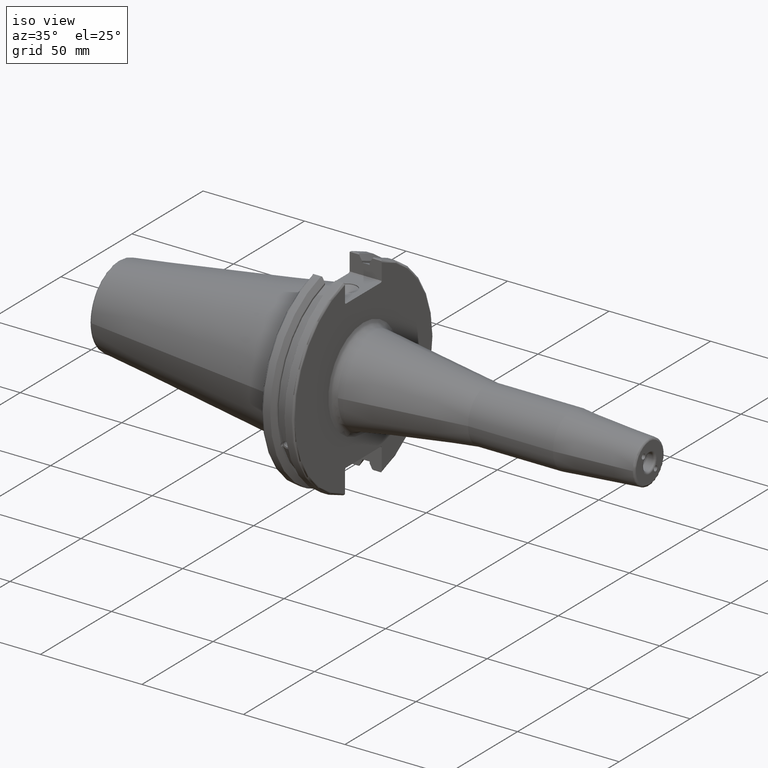
[diagram: clean part render]
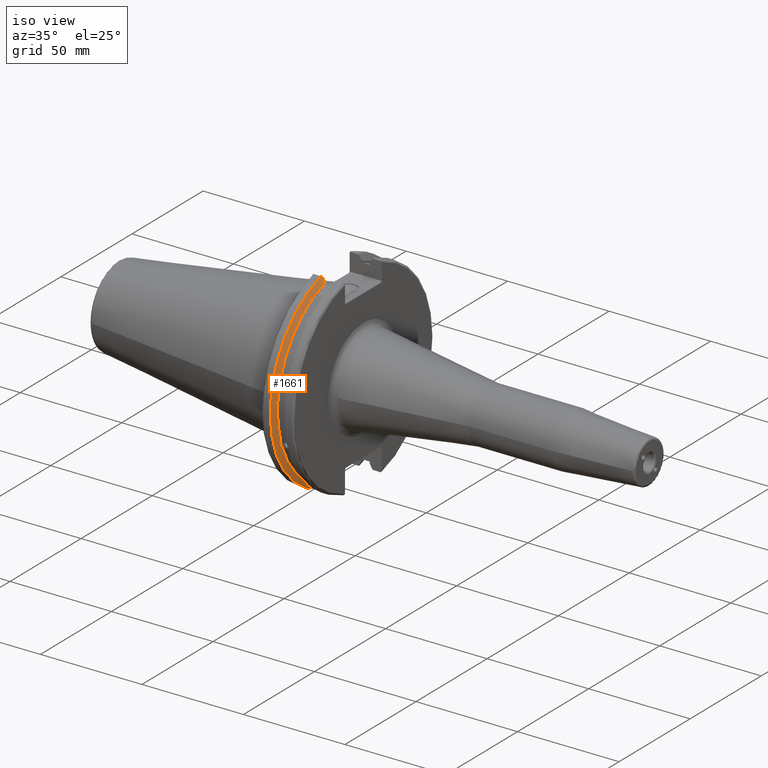
[diagram: same view with one face highlighted and labeled with its STEP entity id]
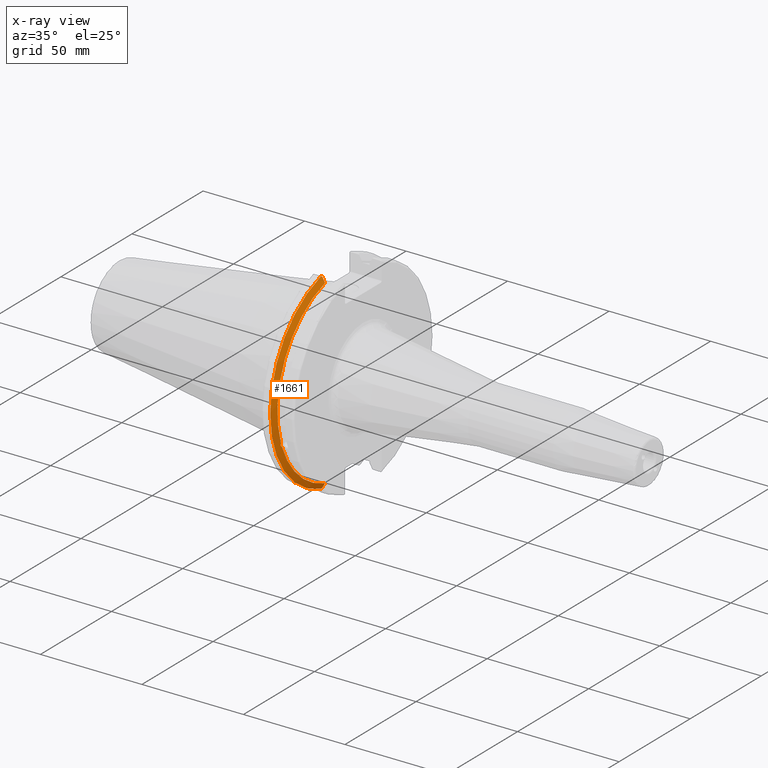
[diagram: x-ray of the same camera — body ghosted, the highlighted face saturated]
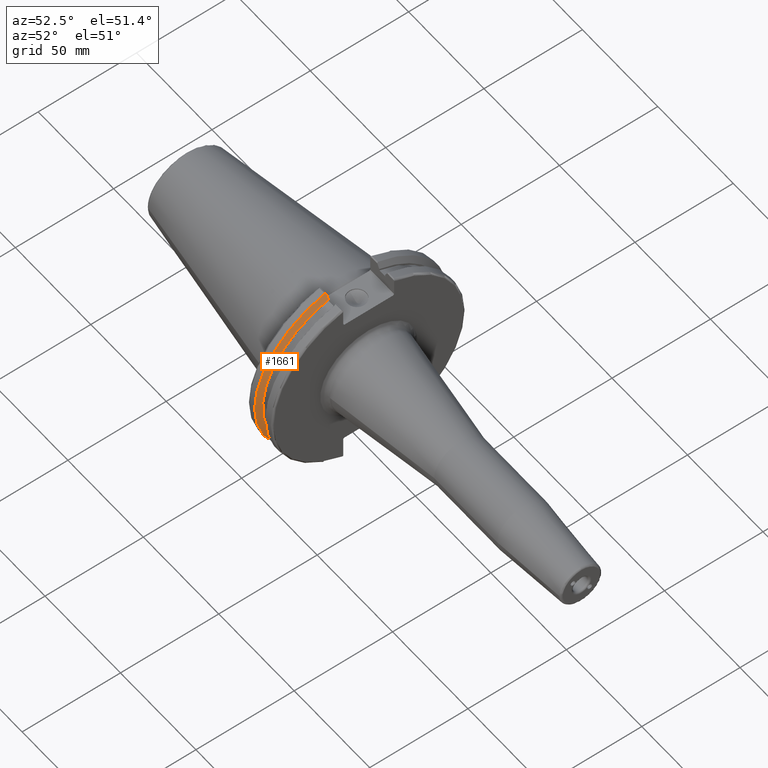
[diagram: same view with one face highlighted and labeled with its STEP entity id]
A machine part, iso view. The second image highlights one B-rep face of the part: STEP entity #1661.
The next image is the same camera in x-ray: the body ghosted, the highlighted face saturated — about 0% of this face is hidden behind the body in this view.
A second angle (auxiliary view) of the same face is appended — the face is thin or edge-on in the first view.
In plain terms, the highlighted conical surface has half-angle 60 deg.
Its self-contained STEP definition (entity closure, byte-faithful):
#25=(
BOUNDED_CURVE()
B_SPLINE_CURVE(2,(#3150,#3151,#3152),.UNSPECIFIED.,.F.,.F.)
B_SPLINE_CURVE_WITH_KNOTS((3,3),(0.,0.275823910674601),.UNSPECIFIED.)
CURVE()
GEOMETRIC_REPRESENTATION_ITEM()
RATIONAL_B_SPLINE_CURVE((1.,1.00038235573593,1.00012873636487))
REPRESENTATION_ITEM('')
);
#26=(
BOUNDED_CURVE()
B_SPLINE_CURVE(2,(#3162,#3163,#3164),.UNSPECIFIED.,.F.,.F.)
B_SPLINE_CURVE_WITH_KNOTS((3,3),(0.0558332664507492,0.331657177124507),
 .UNSPECIFIED.)
CURVE()
GEOMETRIC_REPRESENTATION_ITEM()
RATIONAL_B_SPLINE_CURVE((1.00012873636807,1.00038235574544,1.))
REPRESENTATION_ITEM('')
);
#27=(
BOUNDED_CURVE()
B_SPLINE_CURVE(2,(#3197,#3198,#3199),.UNSPECIFIED.,.F.,.F.)
B_SPLINE_CURVE_WITH_KNOTS((3,3),(0.,0.0648240472897372),.UNSPECIFIED.)
CURVE()
GEOMETRIC_REPRESENTATION_ITEM()
RATIONAL_B_SPLINE_CURVE((1.,1.00011477674836,1.00019140645948))
REPRESENTATION_ITEM('')
);
#28=(
BOUNDED_CURVE()
B_SPLINE_CURVE(2,(#3205,#3206,#3207),.UNSPECIFIED.,.F.,.F.)
B_SPLINE_CURVE_WITH_KNOTS((3,3),(0.325260944932348,0.390084992222201),
 .UNSPECIFIED.)
CURVE()
GEOMETRIC_REPRESENTATION_ITEM()
RATIONAL_B_SPLINE_CURVE((1.00019140645916,1.00011477674817,1.))
REPRESENTATION_ITEM('')
);
#107=B_SPLINE_CURVE_WITH_KNOTS('',3,(#2641,#2642,#2643,#2644,#2645,#2646,
#2647,#2648,#2649,#2650,#2651,#2652,#2653,#2654),.UNSPECIFIED.,.F.,.F.,
(4,2,2,2,2,2,4),(0.426712868358719,0.441644498666906,0.48031331322313,0.518982127779354,
0.557650942335578,0.596319756891801,0.611251387199988),.UNSPECIFIED.);
#262=FACE_OUTER_BOUND('',#375,.T.);
#375=EDGE_LOOP('',(#1535,#1536,#1537,#1538,#1539,#1540,#1541,#1542));
#615=CIRCLE('',#1762,46.4219772964944);
#641=CIRCLE('',#1817,49.2125);
#657=CIRCLE('',#1864,46.4219772964944);
#713=VERTEX_POINT('',#2638);
#714=VERTEX_POINT('',#2640);
#731=VERTEX_POINT('',#2730);
#795=VERTEX_POINT('',#3147);
#796=VERTEX_POINT('',#3149);
#799=VERTEX_POINT('',#3161);
#803=VERTEX_POINT('',#3195);
#804=VERTEX_POINT('',#3201);
#894=EDGE_CURVE('',#714,#713,#107,.T.);
#917=EDGE_CURVE('',#714,#731,#615,.T.);
#1005=EDGE_CURVE('',#796,#795,#25,.T.);
#1011=EDGE_CURVE('',#799,#731,#26,.T.);
#1019=EDGE_CURVE('',#803,#795,#27,.T.);
#1021=EDGE_CURVE('',#803,#804,#641,.T.);
#1022=EDGE_CURVE('',#799,#804,#28,.T.);
#1064=EDGE_CURVE('',#796,#713,#657,.T.);
#1535=ORIENTED_EDGE('',*,*,#894,.T.);
#1536=ORIENTED_EDGE('',*,*,#1064,.F.);
#1537=ORIENTED_EDGE('',*,*,#1005,.T.);
#1538=ORIENTED_EDGE('',*,*,#1019,.F.);
#1539=ORIENTED_EDGE('',*,*,#1021,.T.);
#1540=ORIENTED_EDGE('',*,*,#1022,.F.);
#1541=ORIENTED_EDGE('',*,*,#1011,.T.);
#1542=ORIENTED_EDGE('',*,*,#917,.F.);
#1571=CONICAL_SURFACE('',#1863,47.8172386482472,1.0471975511966);
#1661=ADVANCED_FACE('',(#262),#1571,.T.);
#1762=AXIS2_PLACEMENT_3D('',#2731,#2054,#2055);
#1817=AXIS2_PLACEMENT_3D('',#3203,#2208,#2209);
#1863=AXIS2_PLACEMENT_3D('',#3319,#2321,#2322);
#1864=AXIS2_PLACEMENT_3D('',#3320,#2323,#2324);
#2054=DIRECTION('center_axis',(1.,0.,0.));
#2055=DIRECTION('ref_axis',(0.,0.,-1.));
#2208=DIRECTION('center_axis',(1.,0.,0.));
#2209=DIRECTION('ref_axis',(0.,0.,-1.));
#2321=DIRECTION('center_axis',(-1.,0.,0.));
#2322=DIRECTION('ref_axis',(0.,-1.,-1.22464679914735E-16));
#2323=DIRECTION('center_axis',(1.,0.,0.));
#2324=DIRECTION('ref_axis',(0.,0.,-1.));
#2638=CARTESIAN_POINT('',(9.2191,-43.9096390749305,-15.0646464421033));
#2640=CARTESIAN_POINT('',(9.2191,-43.3201030900029,-16.684383248648));
#2641=CARTESIAN_POINT('Ctrl Pts',(9.21910000000001,-43.3201030900029,-16.6843832486479));
#2642=CARTESIAN_POINT('Ctrl Pts',(9.20211843903392,-43.3613106941341,-16.6592273018006));
#2643=CARTESIAN_POINT('Ctrl Pts',(9.18608675403322,-43.4012416983557,-16.6326763251437));
#2644=CARTESIAN_POINT('Ctrl Pts',(9.13238673845037,-43.5391037343221,-16.5325130832406));
#2645=CARTESIAN_POINT('Ctrl Pts',(9.09621610663556,-43.6406982153491,-16.441180795372));
#2646=CARTESIAN_POINT('Ctrl Pts',(9.04690868251975,-43.8110833825827,-16.2291323464527));
#2647=CARTESIAN_POINT('Ctrl Pts',(9.0341,-43.8794096049168,-16.10796730316));
#2648=CARTESIAN_POINT('Ctrl Pts',(9.0341,-43.9675796948952,-15.8657219718732));
#2649=CARTESIAN_POINT('Ctrl Pts',(9.04690868251975,-43.9931221605126,-15.7289849146254));
#2650=CARTESIAN_POINT('Ctrl Pts',(9.09621610663556,-43.9989016655819,-15.4570249042867));
#2651=CARTESIAN_POINT('Ctrl Pts',(9.13238673845037,-43.9797830409458,-15.3217566390708));
#2652=CARTESIAN_POINT('Ctrl Pts',(9.18608675403322,-43.9385582852181,-15.1564111356409));
#2653=CARTESIAN_POINT('Ctrl Pts',(9.20211843903392,-43.9250360001461,-15.1104047527575));
#2654=CARTESIAN_POINT('Ctrl Pts',(9.2191,-43.9096390749305,-15.0646464421033));
#2730=CARTESIAN_POINT('',(9.2191,-12.95,-44.5791147973604));
#2731=CARTESIAN_POINT('Origin',(9.2191,0.,0.));
#3147=CARTESIAN_POINT('',(7.88638960562424,-12.95,46.9780755322918));
#3149=CARTESIAN_POINT('',(9.2191,-12.95,44.5791147973604));
#3150=CARTESIAN_POINT('Ctrl Pts',(9.2191,-12.95,44.5791147973604));
#3151=CARTESIAN_POINT('Ctrl Pts',(8.57020449055857,-12.95,45.7494966802148));
#3152=CARTESIAN_POINT('Ctrl Pts',(7.88638960562424,-12.95,46.9780755322918));
#3161=CARTESIAN_POINT('',(7.88638960562425,-12.95,-46.9780755322918));
#3162=CARTESIAN_POINT('Ctrl Pts',(7.88638960562425,-12.95,-46.9780755322918));
#3163=CARTESIAN_POINT('Ctrl Pts',(8.57020449054166,-12.95,-45.7494966802452));
#3164=CARTESIAN_POINT('Ctrl Pts',(9.2191,-12.95,-44.5791147973604));
#3195=CARTESIAN_POINT('',(7.60799096595127,-13.4317035994433,47.3440544806494));
#3197=CARTESIAN_POINT('Ctrl Pts',(7.60799096595126,-13.4317035994433,47.3440544806494));
#3198=CARTESIAN_POINT('Ctrl Pts',(7.7482689666382,-13.1896660169966,47.1601640966265));
#3199=CARTESIAN_POINT('Ctrl Pts',(7.88638960562424,-12.95,46.9780755322918));
#3201=CARTESIAN_POINT('',(7.60799096595127,-13.4317035994433,-47.3440544806494));
#3203=CARTESIAN_POINT('Origin',(7.60799096595127,0.,0.));
#3205=CARTESIAN_POINT('Ctrl Pts',(7.88638960562425,-12.95,-46.9780755322918));
#3206=CARTESIAN_POINT('Ctrl Pts',(7.74826896663813,-13.1896660169967,-47.1601640966265));
#3207=CARTESIAN_POINT('Ctrl Pts',(7.60799096595127,-13.4317035994434,-47.3440544806494));
#3319=CARTESIAN_POINT('Origin',(8.41354548297563,0.,0.));
#3320=CARTESIAN_POINT('Origin',(9.2191,0.,0.));